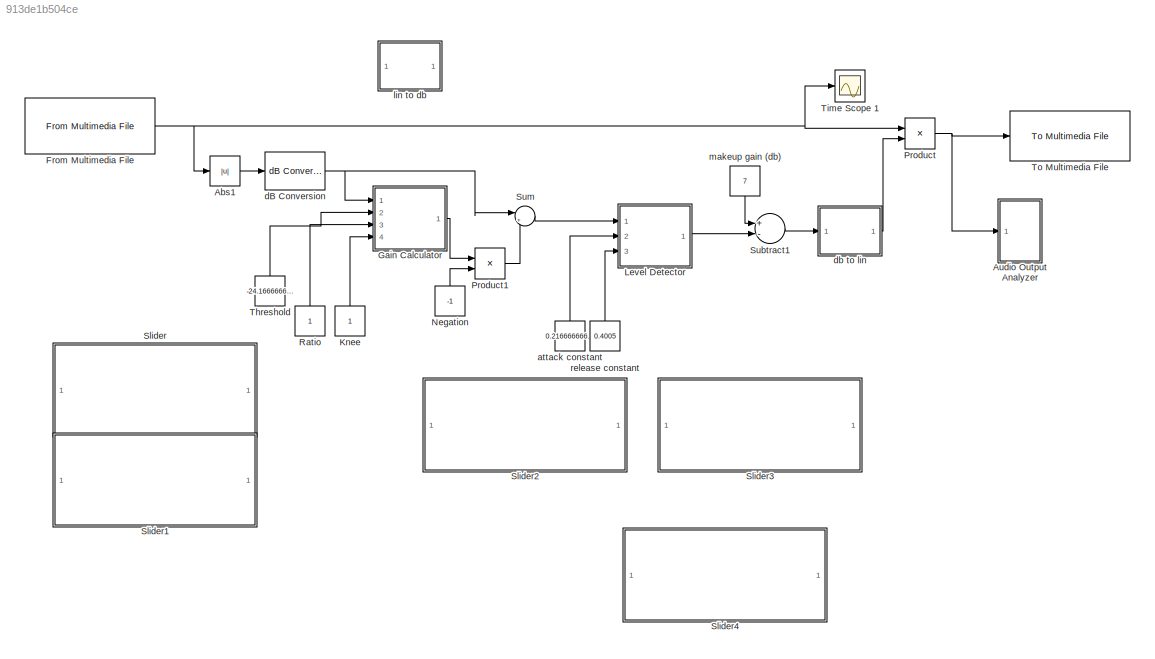
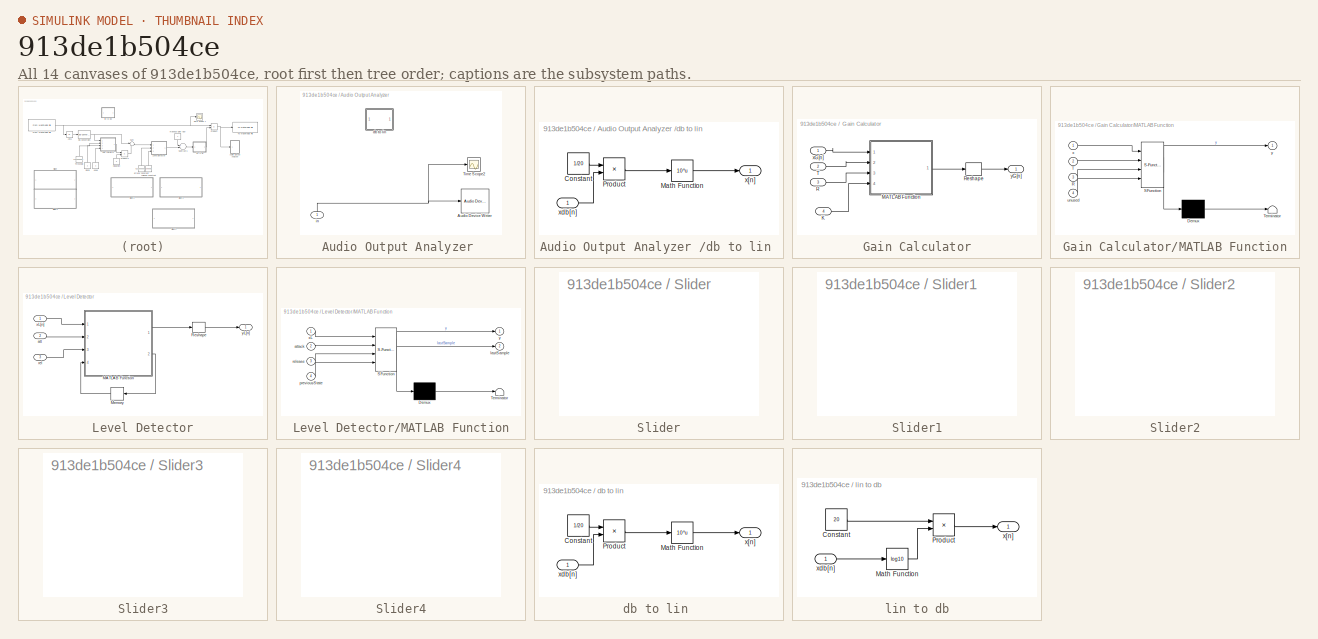
[diagram: thumbnail index - all 14 canvases of the model, root first then tree order]
MODEL slx_913de1b504ce
KIND model
CONFIG AbsTol = auto
CONFIG EnableMultiTasking = off
CONFIG FixedStep = auto
CONFIG MaxStep = auto
CONFIG MinStep = auto
CONFIG RelTol = 1e-3
CONFIG SampleTimeConstraint = Unconstrained
CONFIG Solver = FixedStepDiscrete
CONFIG SolverName = FixedStepDiscrete
CONFIG StartTime = 0.0
CONFIG StopTime = inf
BLOCK [Abs] Abs1
  SaturateOnIntegerOverflow = off
BLOCK [SubSystem] Audio Output Analyzer 
  Ports = [1]
  RequestExecContextInheritance = off
  Variant = off
BLOCK [Reference] Audio Output Analyzer /Audio Device Writer  REF=dspsnks4/Audio Device
Writer
  Ports = [1]
  SourceBlock = dspsnks4/Audio Device\nWriter
  SourceType = Audio Device Writer
BLOCK [Scope] Audio Output Analyzer /Time Scope2
  DefaultConfigurationName = spbscopes.TimeScopeBlockCfg
  NumInputPorts = 1
  Ports = [1]
  ScopeSpecificationString = spbscopes.TimeScopeBlockCfg('CurrentConfiguration', extmgr.ConfigurationSet(extmgr.Configuration('Core','General UI',true),extmgr.Configuration('Core','Source UI',true),extmgr.Configuration('Sources','WiredSimulink',true),extmgr.Configuration('Visuals','Time Domain',true,'DisplayPropertyDefaults',struct('MinYLimReal','-1.45067','MaxYLimReal','2.13042','YLabelReal','Amplitude','MinYLimMag','0.00000...<+1374ch>
  UserDataPersistent = on
BLOCK [SubSystem] Audio Output Analyzer /db to lin 
  Ports = [1, 1]
  RequestExecContextInheritance = off
  Variant = off
BLOCK [Constant] Audio Output Analyzer /db to lin /Constant
  Value = 1/20
BLOCK [Math] Audio Output Analyzer /db to lin /Math Function
  Operator = 10^u
  Ports = [1, 1]
BLOCK [Product] Audio Output Analyzer /db to lin /Product
  InputSameDT = off
  OutDataTypeStr = Inherit: Inherit via internal rule
  Ports = [2, 1]
  RndMeth = Floor
  SaturateOnIntegerOverflow = off
BLOCK [Outport] Audio Output Analyzer /db to lin /x[n]
  IconDisplay = Port number
BLOCK [Inport] Audio Output Analyzer /db to lin /xdb[n]
  IconDisplay = Port number
BLOCK [Inport] Audio Output Analyzer /in
  IconDisplay = Port number
BLOCK [Reference] From Multimedia File  REF=dspvision/From Multimedia File
  Ports = [0, 1]
  SourceBlock = dspvision/From Multimedia File
  SourceType = From Multimedia File
BLOCK [SubSystem] Gain Calculator
  Ports = [4, 1]
  RequestExecContextInheritance = off
  Variant = off
BLOCK [Inport] Gain Calculator/K
  IconDisplay = Port number
  Port = 4
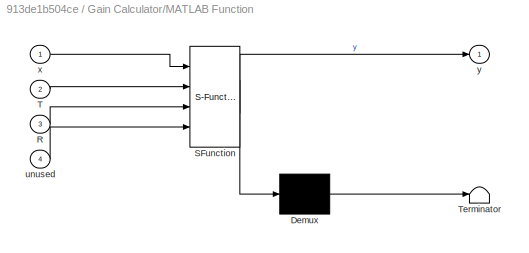
BLOCK [SubSystem] Gain Calculator/MATLAB Function
  ErrorFcn = Stateflow.Translate.translate
  PermitHierarchicalResolution = ExplicitOnly
  Ports = [4, 1]
  RequestExecContextInheritance = off
  SFBlockType = MATLAB Function
  TreatAsAtomicUnit = on
  Variant = off
BLOCK [Demux] Gain Calculator/MATLAB Function/ Demux 
  Outputs = 1
  Ports = [1, 1]
BLOCK [S-Function] Gain Calculator/MATLAB Function/ SFunction 
  EnableBusSupport = on
  FunctionName = sf_sfun
  PortCounts = [4 2]
  Ports = [4, 2]
  SFcnIsStateOwnerBlock = off
  SFunctionDeploymentMode = off
  Tag = Stateflow S-Function CompressorDesign 2
BLOCK [Terminator] Gain Calculator/MATLAB Function/ Terminator 
BLOCK [Inport] Gain Calculator/MATLAB Function/R
  IconDisplay = Port number
  Port = 3
BLOCK [Inport] Gain Calculator/MATLAB Function/T
  IconDisplay = Port number
  Port = 2
BLOCK [Inport] Gain Calculator/MATLAB Function/unused
  IconDisplay = Port number
  Port = 4
BLOCK [Inport] Gain Calculator/MATLAB Function/x
  IconDisplay = Port number
BLOCK [Outport] Gain Calculator/MATLAB Function/y
  IconDisplay = Port number
BLOCK [Inport] Gain Calculator/R 
  IconDisplay = Port number
  Port = 3
BLOCK [Reshape] Gain Calculator/Reshape
  OutputDimensionality = Column vector (2-D)
  Ports = [1, 1]
BLOCK [Inport] Gain Calculator/T 
  IconDisplay = Port number
  Port = 2
BLOCK [Inport] Gain Calculator/xG[n]
  IconDisplay = Port number
BLOCK [Outport] Gain Calculator/yG[n]
  IconDisplay = Port number
BLOCK [Constant] Knee
BLOCK [SubSystem] Level Detector
  Ports = [3, 1]
  RequestExecContextInheritance = off
  Variant = off
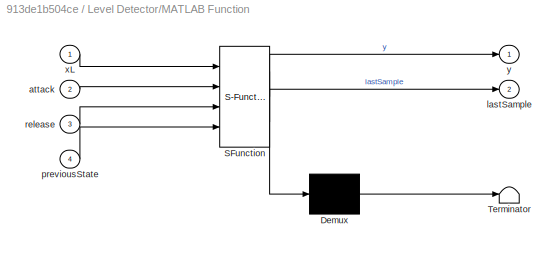
BLOCK [SubSystem] Level Detector/MATLAB Function
  ErrorFcn = Stateflow.Translate.translate
  PermitHierarchicalResolution = ExplicitOnly
  Ports = [4, 2]
  RequestExecContextInheritance = off
  SFBlockType = MATLAB Function
  TreatAsAtomicUnit = on
  Variant = off
BLOCK [Demux] Level Detector/MATLAB Function/ Demux 
  Outputs = 1
  Ports = [1, 1]
BLOCK [S-Function] Level Detector/MATLAB Function/ SFunction 
  EnableBusSupport = on
  FunctionName = sf_sfun
  PortCounts = [4 3]
  Ports = [4, 3]
  SFcnIsStateOwnerBlock = off
  SFunctionDeploymentMode = off
  Tag = Stateflow S-Function CompressorDesign 1
BLOCK [Terminator] Level Detector/MATLAB Function/ Terminator 
BLOCK [Inport] Level Detector/MATLAB Function/attack
  IconDisplay = Port number
  Port = 2
BLOCK [Outport] Level Detector/MATLAB Function/lastSample
  IconDisplay = Port number
  Port = 2
BLOCK [Inport] Level Detector/MATLAB Function/previousState
  IconDisplay = Port number
  Port = 4
BLOCK [Inport] Level Detector/MATLAB Function/release
  IconDisplay = Port number
  Port = 3
BLOCK [Inport] Level Detector/MATLAB Function/xL
  IconDisplay = Port number
BLOCK [Outport] Level Detector/MATLAB Function/y
  IconDisplay = Port number
BLOCK [Memory] Level Detector/Memory
BLOCK [Reshape] Level Detector/Reshape
  OutputDimensionality = Column vector (2-D)
  Ports = [1, 1]
BLOCK [Inport] Level Detector/att 
  IconDisplay = Port number
  Port = 2
BLOCK [Inport] Level Detector/rel
  IconDisplay = Port number
  Port = 3
BLOCK [Inport] Level Detector/xL[n]
  IconDisplay = Port number
BLOCK [Outport] Level Detector/yL[n]
  IconDisplay = Port number
BLOCK [Constant] Negation
  Value = -1
BLOCK [Product] Product
  InputSameDT = off
  OutDataTypeStr = Inherit: Inherit via internal rule
  Ports = [2, 1]
  RndMeth = Floor
  SaturateOnIntegerOverflow = off
BLOCK [Product] Product1
  InputSameDT = off
  OutDataTypeStr = Inherit: Inherit via internal rule
  Ports = [2, 1]
  RndMeth = Floor
  SaturateOnIntegerOverflow = off
BLOCK [Constant] Ratio
BLOCK [SubSystem] Slider
  DialogController = hmiCreateDDGDialog
  IsWebBlock = on
  MaskHideContents = on
  Ports = []
  RequestExecContextInheritance = off
  Variant = off
BLOCK [SubSystem] Slider1
  DialogController = hmiCreateDDGDialog
  IsWebBlock = on
  MaskHideContents = on
  Ports = []
  RequestExecContextInheritance = off
  Variant = off
BLOCK [SubSystem] Slider2
  DialogController = hmiCreateDDGDialog
  IsWebBlock = on
  MaskHideContents = on
  Ports = []
  RequestExecContextInheritance = off
  Variant = off
BLOCK [SubSystem] Slider3
  DialogController = hmiCreateDDGDialog
  IsWebBlock = on
  MaskHideContents = on
  Ports = []
  RequestExecContextInheritance = off
  Variant = off
BLOCK [SubSystem] Slider4
  DialogController = hmiCreateDDGDialog
  IsWebBlock = on
  MaskHideContents = on
  Ports = []
  RequestExecContextInheritance = off
  Variant = off
BLOCK [Sum] Subtract1
  InputSameDT = off
  Inputs = +-
  OutDataTypeStr = Inherit: Inherit via internal rule
  Ports = [2, 1]
  SaturateOnIntegerOverflow = off
BLOCK [Sum] Sum
  IconShape = round
  InputSameDT = off
  Inputs = |++
  OutDataTypeStr = Inherit: Inherit via internal rule
  Ports = [2, 1]
  SaturateOnIntegerOverflow = off
BLOCK [Constant] Threshold
  Value = -24.16666666667
BLOCK [Scope] Time Scope 1
  DefaultConfigurationName = spbscopes.TimeScopeBlockCfg
  NumInputPorts = 1
  Ports = [1]
  ScopeSpecificationString = spbscopes.TimeScopeBlockCfg('CurrentConfiguration', extmgr.ConfigurationSet(extmgr.Configuration('Core','General UI',true),extmgr.Configuration('Core','Source UI',true),extmgr.Configuration('Sources','WiredSimulink',true,'DataLoggingVariableName','ScopeData1'),extmgr.Configuration('Visuals','Time Domain',true,'DisplayPropertyDefaults',struct('MinYLimReal','-0.95767','MaxYLimReal','1.00255','YLabel...<+1432ch>
  UserDataPersistent = on
BLOCK [Reference] To Multimedia File  REF=dspvision/To Multimedia File
  Ports = [1]
  SourceBlock = dspvision/To Multimedia File
  SourceType = To Multimedia File
BLOCK [Constant] attack constant
  Value = 0.2166666666667
BLOCK [Reference] dB Conversion  REF=dspmathops/dB Conversion
  Ports = [1, 1]
  SourceBlock = dspmathops/dB Conversion
  SourceType = dB Conversion
BLOCK [SubSystem] db to lin 
  Ports = [1, 1]
  RequestExecContextInheritance = off
  Variant = off
BLOCK [Constant] db to lin /Constant
  Value = 1/20
BLOCK [Math] db to lin /Math Function
  Operator = 10^u
  Ports = [1, 1]
BLOCK [Product] db to lin /Product
  InputSameDT = off
  OutDataTypeStr = Inherit: Inherit via internal rule
  Ports = [2, 1]
  RndMeth = Floor
  SaturateOnIntegerOverflow = off
BLOCK [Outport] db to lin /x[n]
  IconDisplay = Port number
BLOCK [Inport] db to lin /xdb[n]
  IconDisplay = Port number
BLOCK [SubSystem] lin to db
  Ports = [1, 1]
  RequestExecContextInheritance = off
  Variant = off
BLOCK [Constant] lin to db/Constant
  Value = 20
BLOCK [Math] lin to db/Math Function
  Operator = log10
  Ports = [1, 1]
BLOCK [Product] lin to db/Product
  InputSameDT = off
  OutDataTypeStr = Inherit: Inherit via internal rule
  Ports = [2, 1]
  RndMeth = Floor
  SaturateOnIntegerOverflow = off
BLOCK [Outport] lin to db/x[n]
  IconDisplay = Port number
BLOCK [Inport] lin to db/xdb[n]
  IconDisplay = Port number
BLOCK [Constant] makeup gain (db) 
  Value = 7
BLOCK [Constant] release constant
  Value = 0.4005
LINE Abs1:1 -> dB Conversion:1
LINE Audio Output Analyzer /db to lin /Constant:1 -> Audio Output Analyzer /db to lin /Product:1
LINE Audio Output Analyzer /db to lin /Math Function:1 -> Audio Output Analyzer /db to lin /x[n]:1
LINE Audio Output Analyzer /db to lin /Product:1 -> Audio Output Analyzer /db to lin /Math Function:1
LINE Audio Output Analyzer /db to lin /xdb[n]:1 -> Audio Output Analyzer /db to lin /Product:2
NET Audio Output Analyzer /in:1 -> Audio Output Analyzer /Audio Device Writer:1, Audio Output Analyzer /Time Scope2:1
NET From Multimedia File:1 -> Abs1:1, Product:1, Time Scope 1:1
LINE Gain Calculator/K:1 -> Gain Calculator/MATLAB Function:4
LINE Gain Calculator/MATLAB Function:1 -> Gain Calculator/Reshape:1
LINE Gain Calculator/R :1 -> Gain Calculator/MATLAB Function:3
LINE Gain Calculator/Reshape:1 -> Gain Calculator/yG[n]:1
LINE Gain Calculator/T :1 -> Gain Calculator/MATLAB Function:2
LINE Gain Calculator/xG[n]:1 -> Gain Calculator/MATLAB Function:1
LINE Gain Calculator:1 -> Product1:1
LINE Knee:1 -> Gain Calculator:4
LINE Level Detector/MATLAB Function:1 -> Level Detector/Reshape:1
LINE Level Detector/MATLAB Function:2 -> Level Detector/Memory:1
LINE Level Detector/Memory:1 -> Level Detector/MATLAB Function:4
LINE Level Detector/Reshape:1 -> Level Detector/yL[n]:1
LINE Level Detector/att :1 -> Level Detector/MATLAB Function:2
LINE Level Detector/rel:1 -> Level Detector/MATLAB Function:3
LINE Level Detector/xL[n]:1 -> Level Detector/MATLAB Function:1
LINE Level Detector:1 -> Subtract1:2
LINE Negation:1 -> Product1:2
LINE Product1:1 -> Sum:2
NET Product:1 -> Audio Output Analyzer :1, To Multimedia File:1
LINE Ratio:1 -> Gain Calculator:3
LINE Subtract1:1 -> db to lin :1
LINE Sum:1 -> Level Detector:1
LINE Threshold:1 -> Gain Calculator:2
LINE attack constant:1 -> Level Detector:2
NET dB Conversion:1 -> Gain Calculator:1, Sum:1
LINE db to lin /Constant:1 -> db to lin /Product:1
LINE db to lin /Math Function:1 -> db to lin /x[n]:1
LINE db to lin /Product:1 -> db to lin /Math Function:1
LINE db to lin /xdb[n]:1 -> db to lin /Product:2
LINE db to lin :1 -> Product:2
LINE lin to db/Constant:1 -> lin to db/Product:1
LINE lin to db/Math Function:1 -> lin to db/Product:2
LINE lin to db/Product:1 -> lin to db/x[n]:1
LINE lin to db/xdb[n]:1 -> lin to db/Math Function:1
LINE makeup gain (db) :1 -> Subtract1:1
LINE release constant:1 -> Level Detector:3
note: NET lines group one-source signal fan-out (src -> all destinations, sorted); 1:1 wires keep LINE
CHART Level Detector/MATLAB Function states=1 transitions=1
  STATE_LABEL 'eML_blk_kernel()'
  STATE_LABEL 'SCRIPT:\nfunction [y,lastSample] = levelDetector(xL,attack,release,previousState)\nFs = 44100;\nattackCoeff = exp(-1./(attack*Fs));\nreleaseCoeff = exp(-1./(release*Fs));\noutput = zeros(length(xL),1);\nfor n=1:length(xL)\n    if xL(n) > previousState\n        output(n,1) = attackCoeff.*previousState+(1-attackCoeff).*xL(n,1);\n    else\n        output(n,1) = releaseCoeff.*previousState+(1-releaseCoeff).*xL(...<+99ch>'
CHART Gain Calculator/MATLAB Function states=1 transitions=1
  STATE_LABEL 'eML_blk_kernel()'
  STATE_LABEL 'SCRIPT:\nfunction y = gainCalculator(x,T,R,~)\ny = zeros(size(x));\n\nfor n=1:length(x)\n    \n    if x(n)<=T\n        y(n,1) = x(n,1);\n    else\n        y(n,1) = T+(x(n,1)-T)./R;\n    end\nend\n\n'
